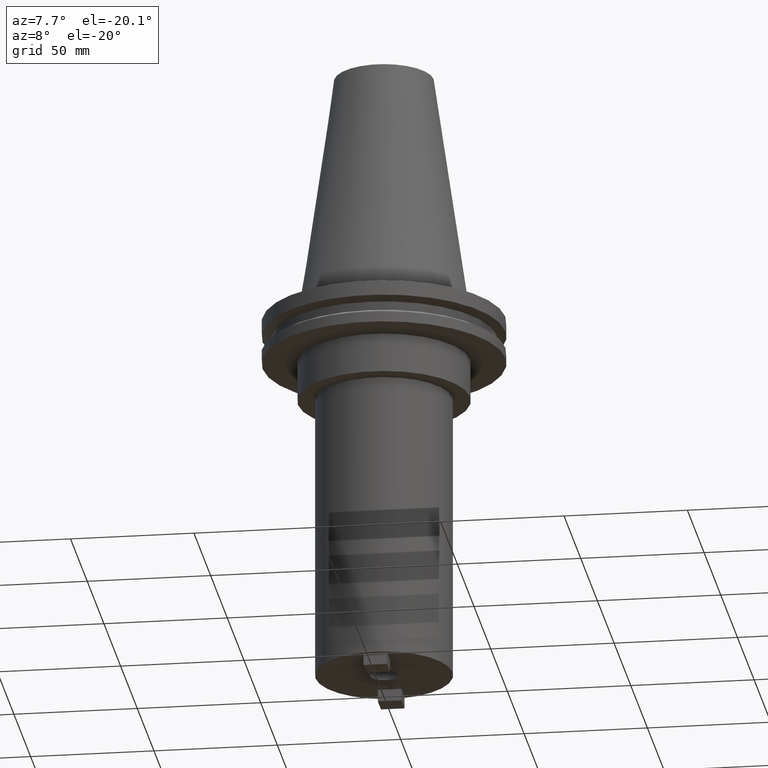
[diagram: clean part render]
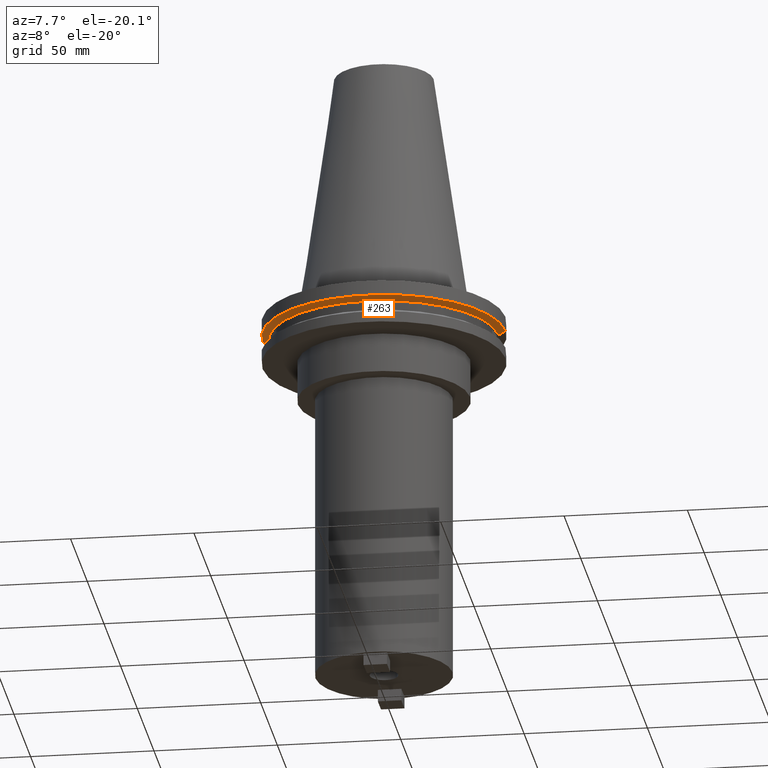
[diagram: same view with one face highlighted and labeled with its STEP entity id]
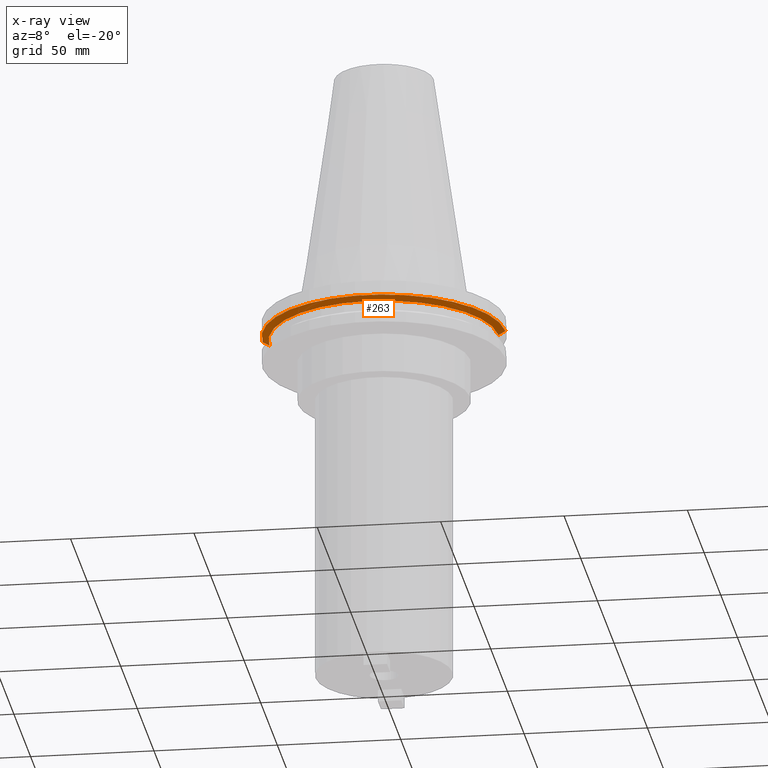
[diagram: x-ray of the same camera — body ghosted, the highlighted face saturated]
A machine part, auxiliary view. The second image highlights one B-rep face of the part: STEP entity #263.
The next image is the same camera in x-ray: the body ghosted, the highlighted face saturated — about 0% of this face is hidden behind the body in this view.
In plain terms, the highlighted conical surface has half-angle 60 deg.
Its self-contained STEP definition (entity closure, byte-faithful):
#9 = EDGE_CURVE ( 'NONE', #337, #527, #148, .T. ) ;
#14 = AXIS2_PLACEMENT_3D ( 'NONE', #205, #956, #1047 ) ;
#52 = ORIENTED_EDGE ( 'NONE', *, *, #9, .T. ) ;
#94 = VERTEX_POINT ( 'NONE', #1003 ) ;
#138 = VERTEX_POINT ( 'NONE', #572 ) ;
#141 = DIRECTION ( 'NONE',  ( -0.8660254037844273833, 1.060575238724893110E-16, 0.5000000000000195399 ) ) ;
#148 = LINE ( 'NONE', #463, #178 ) ;
#178 = VECTOR ( 'NONE', #304, 1000.000000000000000 ) ;
#205 = CARTESIAN_POINT ( 'NONE',  ( 0.000000000000000000, 0.000000000000000000, -9.204999999999991189 ) ) ;
#215 = LINE ( 'NONE', #549, #570 ) ;
#263 = ADVANCED_FACE ( 'NONE', ( #620 ), #786, .T. ) ;
#302 = AXIS2_PLACEMENT_3D ( 'NONE', #343, #937, #695 ) ;
#304 = DIRECTION ( 'NONE',  ( 0.8660254037844273833, 0.000000000000000000, 0.5000000000000195399 ) ) ;
#334 = CARTESIAN_POINT ( 'NONE',  ( 0.000000000000000000, 0.000000000000000000, -7.602389855251287187 ) ) ;
#337 = VERTEX_POINT ( 'NONE', #348 ) ;
#343 = CARTESIAN_POINT ( 'NONE',  ( 0.000000000000000000, 0.000000000000000000, -9.204999999999991189 ) ) ;
#348 = CARTESIAN_POINT ( 'NONE',  ( 46.43919780457007818, 0.000000000000000000, -9.204999999999991189 ) ) ;
#463 = CARTESIAN_POINT ( 'NONE',  ( 46.43919780457007818, 0.000000000000000000, -9.204999999999991189 ) ) ;
#484 = CIRCLE ( 'NONE', #14, 46.43919780457007818 ) ;
#527 = VERTEX_POINT ( 'NONE', #857 ) ;
#549 = CARTESIAN_POINT ( 'NONE',  ( -46.43919780457007818, 5.687161494633754392E-15, -9.204999999999991189 ) ) ;
#555 = EDGE_LOOP ( 'NONE', ( #561, #709, #52, #914 ) ) ;
#561 = ORIENTED_EDGE ( 'NONE', *, *, #727, .F. ) ;
#570 = VECTOR ( 'NONE', #141, 1000.000000000000000 ) ;
#572 = CARTESIAN_POINT ( 'NONE',  ( -46.43919780457007818, 5.857130358318727293E-15, -9.204999999999991189 ) ) ;
#620 = FACE_OUTER_BOUND ( 'NONE', #555, .T. ) ;
#649 = AXIS2_PLACEMENT_3D ( 'NONE', #334, #759, #1009 ) ;
#686 = EDGE_CURVE ( 'NONE', #138, #337, #484, .T. ) ;
#695 = DIRECTION ( 'NONE',  ( 1.000000000000000000, 0.000000000000000000, 0.000000000000000000 ) ) ;
#709 = ORIENTED_EDGE ( 'NONE', *, *, #686, .T. ) ;
#727 = EDGE_CURVE ( 'NONE', #138, #94, #215, .T. ) ;
#759 = DIRECTION ( 'NONE',  ( -0.000000000000000000, -0.000000000000000000, 1.000000000000000000 ) ) ;
#786 = CONICAL_SURFACE ( 'NONE', #302, 46.43919780457007818, 1.047197551196575205 ) ;
#857 = CARTESIAN_POINT ( 'NONE',  ( 49.21500000000000341, 0.000000000000000000, -7.602389855251287187 ) ) ;
#896 = EDGE_CURVE ( 'NONE', #94, #527, #983, .T. ) ;
#914 = ORIENTED_EDGE ( 'NONE', *, *, #896, .F. ) ;
#937 = DIRECTION ( 'NONE',  ( -0.000000000000000000, -0.000000000000000000, 1.000000000000000000 ) ) ;
#956 = DIRECTION ( 'NONE',  ( -0.000000000000000000, -0.000000000000000000, 1.000000000000000000 ) ) ;
#983 = CIRCLE ( 'NONE', #649, 49.21500000000000341 ) ;
#1003 = CARTESIAN_POINT ( 'NONE',  ( -49.21500000000000341, 6.027099222003699404E-15, -7.602389855251287187 ) ) ;
#1009 = DIRECTION ( 'NONE',  ( 1.000000000000000000, 0.000000000000000000, 0.000000000000000000 ) ) ;
#1047 = DIRECTION ( 'NONE',  ( 1.000000000000000000, 0.000000000000000000, 0.000000000000000000 ) ) ;